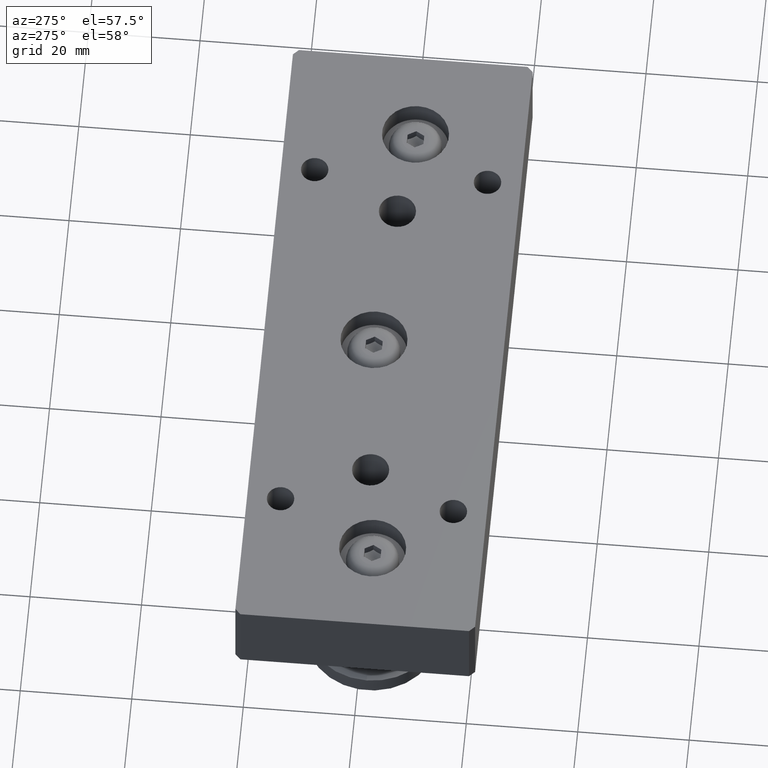
[diagram: clean part render]
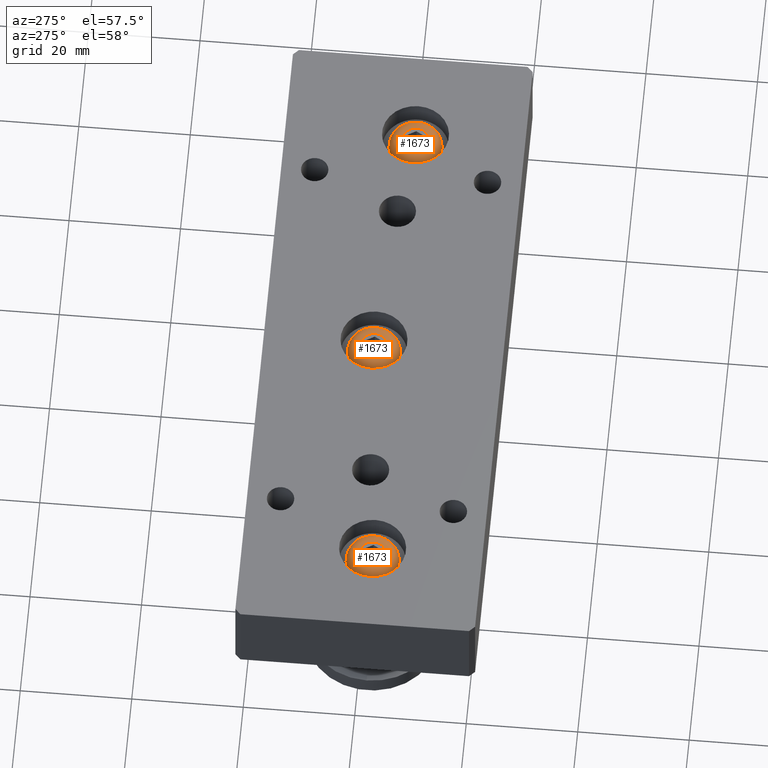
[diagram: same view with one multi-face feature highlighted, each face labeled with its STEP entity id]
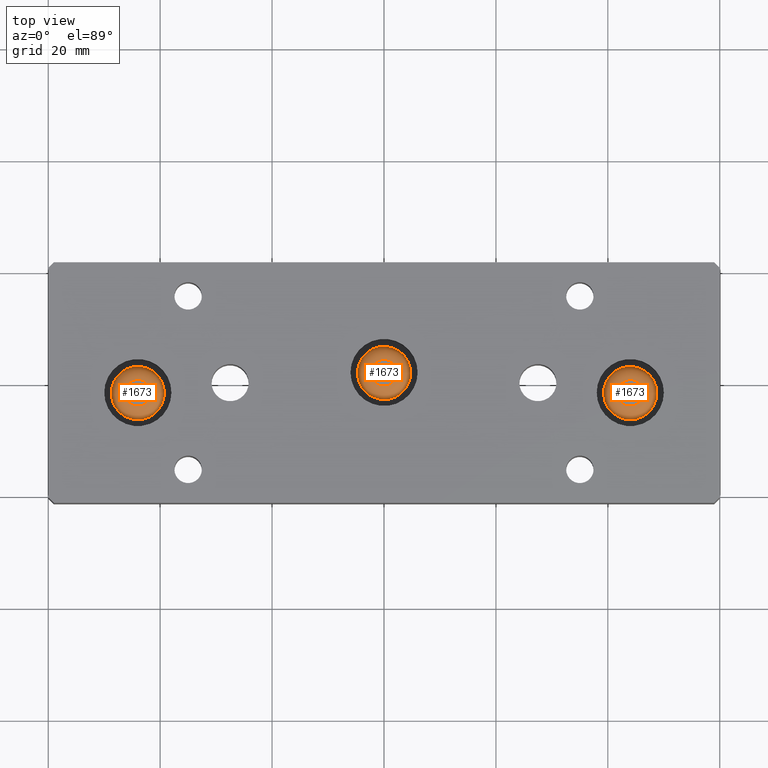
[diagram: same view with one multi-face feature highlighted, each face labeled with its STEP entity id]
A machine part, auxiliary view. The highlighted faces form ONE feature: a constant-radius fillet chain: 3 tangent blend faces with common blend radius 2.37 mm. The faces share edges in the B-rep.
A second angle (top view) of the same feature is appended — it is thin or edge-on in the first view.
Their STEP definitions:
[1] entity #1673 (Torus):
#76=TOROIDAL_SURFACE('',#2053,2.38,2.37);
#256=CIRCLE('',#2054,4.75);
#257=CIRCLE('',#2055,4.75);
#258=CIRCLE('',#2056,2.37);
#259=CIRCLE('',#2057,2.38);
#349=FACE_OUTER_BOUND('',#485,.T.);
#485=EDGE_LOOP('',(#1382,#1383,#1384,#1385,#1386));
#859=VERTEX_POINT('',#2978);
#860=VERTEX_POINT('',#2979);
#861=VERTEX_POINT('',#2982);
#1044=EDGE_CURVE('',#859,#860,#256,.T.);
#1045=EDGE_CURVE('',#860,#859,#257,.T.);
#1046=EDGE_CURVE('',#859,#861,#258,.T.);
#1047=EDGE_CURVE('',#861,#861,#259,.T.);
#1382=ORIENTED_EDGE('',*,*,#1044,.T.);
#1383=ORIENTED_EDGE('',*,*,#1045,.T.);
#1384=ORIENTED_EDGE('',*,*,#1046,.T.);
#1385=ORIENTED_EDGE('',*,*,#1047,.T.);
#1386=ORIENTED_EDGE('',*,*,#1046,.F.);
#1673=ADVANCED_FACE('',(#349),#76,.T.);
#2053=AXIS2_PLACEMENT_3D('',#2977,#2465,#2466);
#2054=AXIS2_PLACEMENT_3D('',#2980,#2467,#2468);
#2055=AXIS2_PLACEMENT_3D('',#2981,#2469,#2470);
#2056=AXIS2_PLACEMENT_3D('',#2983,#2471,#2472);
#2057=AXIS2_PLACEMENT_3D('',#2984,#2473,#2474);
#2465=DIRECTION('center_axis',(1.,1.18226200132698E-17,0.));
#2466=DIRECTION('ref_axis',(0.,0.,-1.));
#2467=DIRECTION('center_axis',(-1.,-1.18226200132698E-17,0.));
#2468=DIRECTION('ref_axis',(0.,-1.,1.22464679914735E-16));
#2469=DIRECTION('center_axis',(-1.,-1.18226200132698E-17,0.));
#2470=DIRECTION('ref_axis',(0.,-1.,1.22464679914735E-16));
#2471=DIRECTION('center_axis',(1.18226200132698E-17,-1.,-1.22464679914735E-16));
#2472=DIRECTION('ref_axis',(0.,-1.22464679914735E-16,1.));
#2473=DIRECTION('center_axis',(1.,1.18226200132698E-17,0.));
#2474=DIRECTION('ref_axis',(1.18226200132698E-17,-1.,1.22464679914735E-16));
#2977=CARTESIAN_POINT('Origin',(-0.379999999999994,-1.2271879573774E-16,
0.));
#2978=CARTESIAN_POINT('',(-0.379999999999994,-7.04426025332733E-16,4.75));
#2979=CARTESIAN_POINT('',(-0.379999999999994,-4.75,-5.81707229594993E-16));
#2980=CARTESIAN_POINT('Origin',(-0.379999999999994,-1.2271879573774E-16,
0.));
#2981=CARTESIAN_POINT('Origin',(-0.379999999999994,-1.2271879573774E-16,
0.));
#2982=CARTESIAN_POINT('',(-2.74999999999999,-4.4220434336626E-16,2.38));
#2983=CARTESIAN_POINT('Origin',(-0.379999999999994,-4.1418473393481E-16,
2.38));
#2984=CARTESIAN_POINT('Origin',(-2.74999999999999,-1.5073840516919E-16,
0.));
[2] entity #1673 (Torus):
#76=TOROIDAL_SURFACE('',#2053,2.38,2.37);
#256=CIRCLE('',#2054,4.75);
#257=CIRCLE('',#2055,4.75);
#258=CIRCLE('',#2056,2.37);
#259=CIRCLE('',#2057,2.38);
#349=FACE_OUTER_BOUND('',#485,.T.);
#485=EDGE_LOOP('',(#1382,#1383,#1384,#1385,#1386));
#859=VERTEX_POINT('',#2978);
#860=VERTEX_POINT('',#2979);
#861=VERTEX_POINT('',#2982);
#1044=EDGE_CURVE('',#859,#860,#256,.T.);
#1045=EDGE_CURVE('',#860,#859,#257,.T.);
#1046=EDGE_CURVE('',#859,#861,#258,.T.);
#1047=EDGE_CURVE('',#861,#861,#259,.T.);
#1382=ORIENTED_EDGE('',*,*,#1044,.T.);
#1383=ORIENTED_EDGE('',*,*,#1045,.T.);
#1384=ORIENTED_EDGE('',*,*,#1046,.T.);
#1385=ORIENTED_EDGE('',*,*,#1047,.T.);
#1386=ORIENTED_EDGE('',*,*,#1046,.F.);
#1673=ADVANCED_FACE('',(#349),#76,.T.);
#2053=AXIS2_PLACEMENT_3D('',#2977,#2465,#2466);
#2054=AXIS2_PLACEMENT_3D('',#2980,#2467,#2468);
#2055=AXIS2_PLACEMENT_3D('',#2981,#2469,#2470);
#2056=AXIS2_PLACEMENT_3D('',#2983,#2471,#2472);
#2057=AXIS2_PLACEMENT_3D('',#2984,#2473,#2474);
#2465=DIRECTION('center_axis',(1.,1.18226200132698E-17,0.));
#2466=DIRECTION('ref_axis',(0.,0.,-1.));
#2467=DIRECTION('center_axis',(-1.,-1.18226200132698E-17,0.));
#2468=DIRECTION('ref_axis',(0.,-1.,1.22464679914735E-16));
#2469=DIRECTION('center_axis',(-1.,-1.18226200132698E-17,0.));
#2470=DIRECTION('ref_axis',(0.,-1.,1.22464679914735E-16));
#2471=DIRECTION('center_axis',(1.18226200132698E-17,-1.,-1.22464679914735E-16));
#2472=DIRECTION('ref_axis',(0.,-1.22464679914735E-16,1.));
#2473=DIRECTION('center_axis',(1.,1.18226200132698E-17,0.));
#2474=DIRECTION('ref_axis',(1.18226200132698E-17,-1.,1.22464679914735E-16));
#2977=CARTESIAN_POINT('Origin',(-0.379999999999994,-1.2271879573774E-16,
0.));
#2978=CARTESIAN_POINT('',(-0.379999999999994,-7.04426025332733E-16,4.75));
#2979=CARTESIAN_POINT('',(-0.379999999999994,-4.75,-5.81707229594993E-16));
#2980=CARTESIAN_POINT('Origin',(-0.379999999999994,-1.2271879573774E-16,
0.));
#2981=CARTESIAN_POINT('Origin',(-0.379999999999994,-1.2271879573774E-16,
0.));
#2982=CARTESIAN_POINT('',(-2.74999999999999,-4.4220434336626E-16,2.38));
#2983=CARTESIAN_POINT('Origin',(-0.379999999999994,-4.1418473393481E-16,
2.38));
#2984=CARTESIAN_POINT('Origin',(-2.74999999999999,-1.5073840516919E-16,
0.));
[3] entity #1673 (Torus):
#76=TOROIDAL_SURFACE('',#2053,2.38,2.37);
#256=CIRCLE('',#2054,4.75);
#257=CIRCLE('',#2055,4.75);
#258=CIRCLE('',#2056,2.37);
#259=CIRCLE('',#2057,2.38);
#349=FACE_OUTER_BOUND('',#485,.T.);
#485=EDGE_LOOP('',(#1382,#1383,#1384,#1385,#1386));
#859=VERTEX_POINT('',#2978);
#860=VERTEX_POINT('',#2979);
#861=VERTEX_POINT('',#2982);
#1044=EDGE_CURVE('',#859,#860,#256,.T.);
#1045=EDGE_CURVE('',#860,#859,#257,.T.);
#1046=EDGE_CURVE('',#859,#861,#258,.T.);
#1047=EDGE_CURVE('',#861,#861,#259,.T.);
#1382=ORIENTED_EDGE('',*,*,#1044,.T.);
#1383=ORIENTED_EDGE('',*,*,#1045,.T.);
#1384=ORIENTED_EDGE('',*,*,#1046,.T.);
#1385=ORIENTED_EDGE('',*,*,#1047,.T.);
#1386=ORIENTED_EDGE('',*,*,#1046,.F.);
#1673=ADVANCED_FACE('',(#349),#76,.T.);
#2053=AXIS2_PLACEMENT_3D('',#2977,#2465,#2466);
#2054=AXIS2_PLACEMENT_3D('',#2980,#2467,#2468);
#2055=AXIS2_PLACEMENT_3D('',#2981,#2469,#2470);
#2056=AXIS2_PLACEMENT_3D('',#2983,#2471,#2472);
#2057=AXIS2_PLACEMENT_3D('',#2984,#2473,#2474);
#2465=DIRECTION('center_axis',(1.,1.18226200132698E-17,0.));
#2466=DIRECTION('ref_axis',(0.,0.,-1.));
#2467=DIRECTION('center_axis',(-1.,-1.18226200132698E-17,0.));
#2468=DIRECTION('ref_axis',(0.,-1.,1.22464679914735E-16));
#2469=DIRECTION('center_axis',(-1.,-1.18226200132698E-17,0.));
#2470=DIRECTION('ref_axis',(0.,-1.,1.22464679914735E-16));
#2471=DIRECTION('center_axis',(1.18226200132698E-17,-1.,-1.22464679914735E-16));
#2472=DIRECTION('ref_axis',(0.,-1.22464679914735E-16,1.));
#2473=DIRECTION('center_axis',(1.,1.18226200132698E-17,0.));
#2474=DIRECTION('ref_axis',(1.18226200132698E-17,-1.,1.22464679914735E-16));
#2977=CARTESIAN_POINT('Origin',(-0.379999999999994,-1.2271879573774E-16,
0.));
#2978=CARTESIAN_POINT('',(-0.379999999999994,-7.04426025332733E-16,4.75));
#2979=CARTESIAN_POINT('',(-0.379999999999994,-4.75,-5.81707229594993E-16));
#2980=CARTESIAN_POINT('Origin',(-0.379999999999994,-1.2271879573774E-16,
0.));
#2981=CARTESIAN_POINT('Origin',(-0.379999999999994,-1.2271879573774E-16,
0.));
#2982=CARTESIAN_POINT('',(-2.74999999999999,-4.4220434336626E-16,2.38));
#2983=CARTESIAN_POINT('Origin',(-0.379999999999994,-4.1418473393481E-16,
2.38));
#2984=CARTESIAN_POINT('Origin',(-2.74999999999999,-1.5073840516919E-16,
0.));